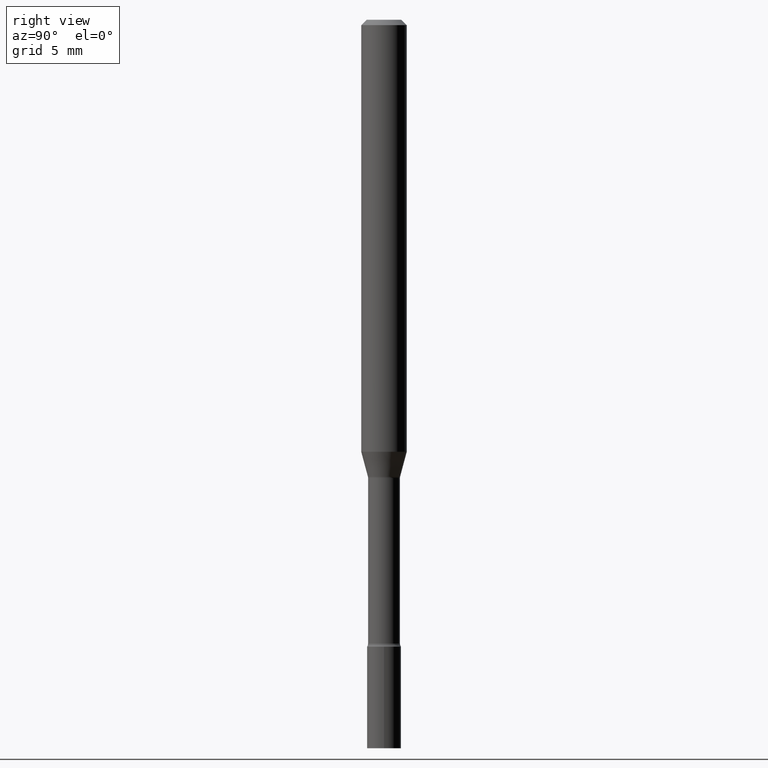
[diagram: clean part render]
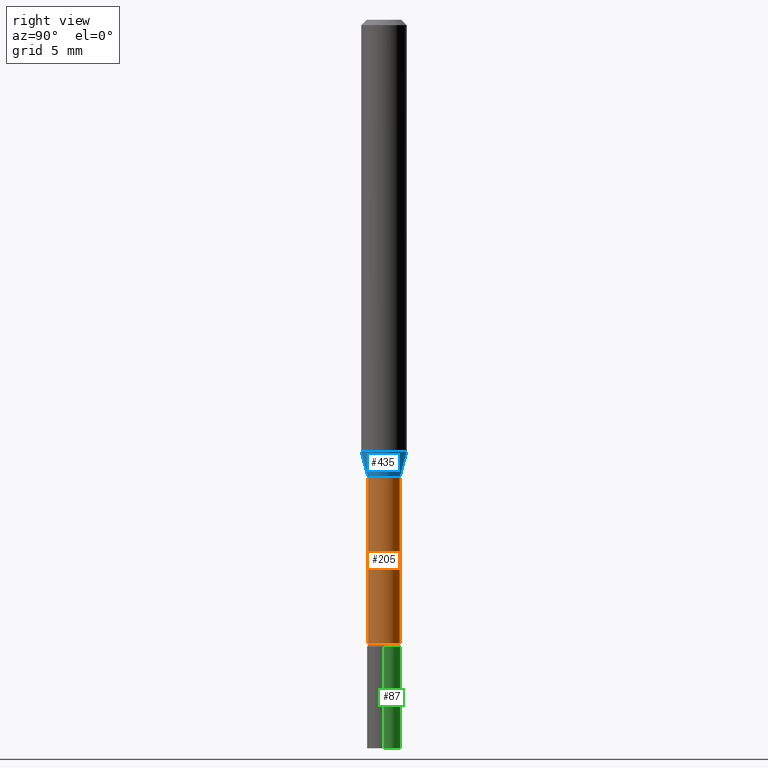
[diagram: same view with three faces highlighted in distinct colors, each labeled with its STEP entity id]
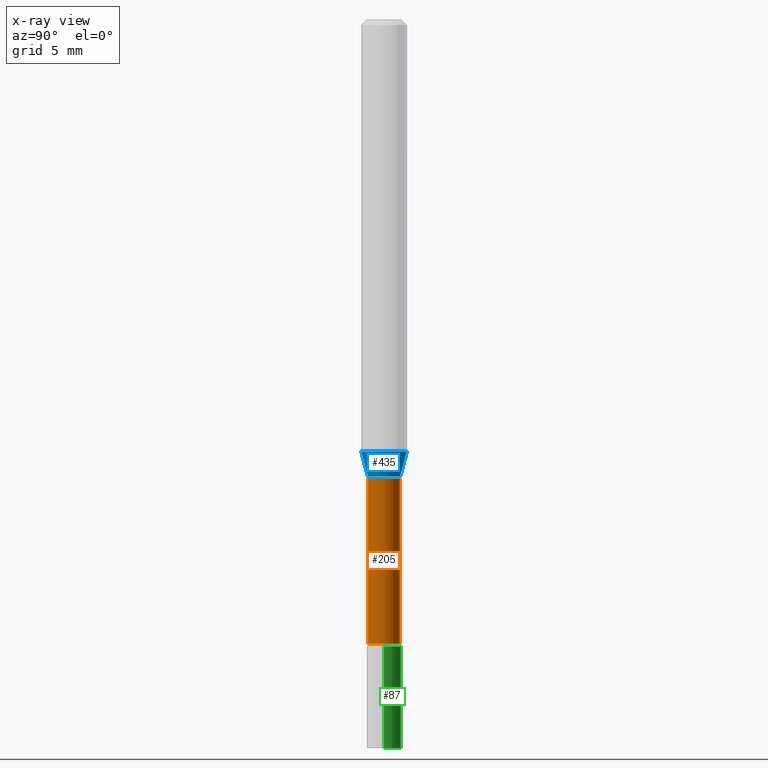
[diagram: x-ray of the same camera — body ghosted, the three highlighted faces saturated]
A machine part, right view with three faces highlighted in distinct colors.
The next image is the same camera in x-ray (body ghosted, the three faces saturated) — at least one of them is partly hidden behind the body in this view.
Their STEP definitions:

[orange] entity #205 — the highlighted cylindrical surface (edge-blend (fillet) strip) has radius 1.11 mm, axis along (-0, 0, 1).
#3 = DIRECTION ( 'NONE',  ( -6.982962677686265133E-15, -1.000000000000000000, 6.251368406554375417E-15 ) ) ;
#6 = EDGE_CURVE ( 'NONE', #343, #289, #273, .T. ) ;
#17 = EDGE_CURVE ( 'NONE', #213, #247, #86, .T. ) ;
#38 = FACE_OUTER_BOUND ( 'NONE', #390, .T. ) ;
#40 = DIRECTION ( 'NONE',  ( -6.982962677686264344E-15, -1.000000000000000000, 6.251368406554373050E-15 ) ) ;
#43 = CARTESIAN_POINT ( 'NONE',  ( 4.187330458508121019E-29, -5.978340440266618372E-15, -1.712273030308291366 ) ) ;
#58 = EDGE_CURVE ( 'NONE', #289, #247, #476, .T. ) ;
#76 = DIRECTION ( 'NONE',  ( -2.445480588895451802E-29, 3.491464465331343396E-15, 1.000000000000000000 ) ) ;
#86 = CIRCLE ( 'NONE', #494, 0.04370000000000001661 ) ;
#95 = DIRECTION ( 'NONE',  ( -2.445480588895451802E-29, 3.491464465331343396E-15, 1.000000000000000000 ) ) ;
#102 = CARTESIAN_POINT ( 'NONE',  ( -3.051554690148591516E-16, -0.04370000000000440893, -1.257974787463810751 ) ) ;
#140 = ORIENTED_EDGE ( 'NONE', *, *, #6, .T. ) ;
#158 = EDGE_CURVE ( 'NONE', #343, #213, #290, .T. ) ;
#172 = VECTOR ( 'NONE', #76, 39.37007874015748143 ) ;
#197 = CYLINDRICAL_SURFACE ( 'NONE', #399, 0.04370000000000002355 ) ;
#198 = CARTESIAN_POINT ( 'NONE',  ( 3.076352924062631068E-29, -4.392174268712645815E-15, -1.257974787463810973 ) ) ;
#205 = ADVANCED_FACE ( 'NONE', ( #38 ), #197, .T. ) ;
#213 = VERTEX_POINT ( 'NONE', #102 ) ;
#218 = CARTESIAN_POINT ( 'NONE',  ( -3.051554690148482062E-16, -0.04370000000000601181, -1.712273030308291144 ) ) ;
#238 = AXIS2_PLACEMENT_3D ( 'NONE', #43, #362, #40 ) ;
#242 = DIRECTION ( 'NONE',  ( -2.445480588895451802E-29, 3.491464465331343790E-15, 1.000000000000000000 ) ) ;
#247 = VERTEX_POINT ( 'NONE', #336 ) ;
#249 = ORIENTED_EDGE ( 'NONE', *, *, #58, .T. ) ;
#270 = ORIENTED_EDGE ( 'NONE', *, *, #158, .F. ) ;
#273 = CIRCLE ( 'NONE', #238, 0.04370000000000003743 ) ;
#289 = VERTEX_POINT ( 'NONE', #474 ) ;
#290 = LINE ( 'NONE', #460, #516 ) ;
#330 = DIRECTION ( 'NONE',  ( -6.982962677686265133E-15, -1.000000000000000000, 3.491464465331344185E-15 ) ) ;
#336 = CARTESIAN_POINT ( 'NONE',  ( 3.105071755272057582E-16, 0.04369999999999563123, -1.257974787463811195 ) ) ;
#343 = VERTEX_POINT ( 'NONE', #218 ) ;
#353 = ORIENTED_EDGE ( 'NONE', *, *, #17, .F. ) ;
#362 = DIRECTION ( 'NONE',  ( -2.445480588895451802E-29, 3.491464465331343790E-15, 1.000000000000000000 ) ) ;
#390 = EDGE_LOOP ( 'NONE', ( #140, #249, #353, #270 ) ) ;
#392 = CARTESIAN_POINT ( 'NONE',  ( 3.105071755271638992E-16, 0.04370000000000002355, -1.525769971349798148E-16 ) ) ;
#399 = AXIS2_PLACEMENT_3D ( 'NONE', #430, #242, #330 ) ;
#430 = CARTESIAN_POINT ( 'NONE',  ( 0.000000000000000000, 0.000000000000000000, 0.000000000000000000 ) ) ;
#460 = CARTESIAN_POINT ( 'NONE',  ( -3.051554690148899665E-16, -0.04370000000000002355, 1.525769971349798148E-16 ) ) ;
#474 = CARTESIAN_POINT ( 'NONE',  ( 3.204547738278472978E-16, 0.04369999999999405610, -1.712273030308291810 ) ) ;
#476 = LINE ( 'NONE', #392, #172 ) ;
#494 = AXIS2_PLACEMENT_3D ( 'NONE', #198, #520, #3 ) ;
#516 = VECTOR ( 'NONE', #95, 39.37007874015748143 ) ;
#520 = DIRECTION ( 'NONE',  ( -2.445480588895451802E-29, 3.491464465331343790E-15, 1.000000000000000000 ) ) ;

[blue] entity #435 — the highlighted conical surface has half-angle 15 deg.
#35 = AXIS2_PLACEMENT_3D ( 'NONE', #178, #296, #465 ) ;
#37 = CIRCLE ( 'NONE', #328, 0.06250000000000000000 ) ;
#65 = CARTESIAN_POINT ( 'NONE',  ( -3.087245492643057408E-16, -0.04421111260566836648, -1.254092501787272829 ) ) ;
#99 = CARTESIAN_POINT ( 'NONE',  ( 3.791140294341928442E-16, 0.04421111260565960960, -1.254092501787273273 ) ) ;
#103 = VERTEX_POINT ( 'NONE', #283 ) ;
#121 = DIRECTION ( 'NONE',  ( -2.445480588895451802E-29, 3.491464465331343790E-15, 1.000000000000000000 ) ) ;
#142 = FACE_OUTER_BOUND ( 'NONE', #406, .T. ) ;
#166 = EDGE_CURVE ( 'NONE', #377, #177, #261, .T. ) ;
#174 = ORIENTED_EDGE ( 'NONE', *, *, #188, .F. ) ;
#176 = CARTESIAN_POINT ( 'NONE',  ( -4.364351673553623829E-16, -0.06250000000000410783, -1.185837444817704922 ) ) ;
#177 = VERTEX_POINT ( 'NONE', #466 ) ;
#178 = CARTESIAN_POINT ( 'NONE',  ( 3.066858869800110826E-29, -4.378619406228748926E-15, -1.254092501787273051 ) ) ;
#187 = AXIS2_PLACEMENT_3D ( 'NONE', #350, #308, #513 ) ;
#188 = EDGE_CURVE ( 'NONE', #103, #191, #372, .T. ) ;
#191 = VERTEX_POINT ( 'NONE', #176 ) ;
#250 = CARTESIAN_POINT ( 'NONE',  ( 3.141388490182940323E-16, 0.04421111260565960960, -1.254092501787273273 ) ) ;
#251 = EDGE_CURVE ( 'NONE', #191, #177, #37, .T. ) ;
#261 = LINE ( 'NONE', #250, #282 ) ;
#263 = CONICAL_SURFACE ( 'NONE', #35, 0.04421111260566398804, 0.2617993877991500740 ) ;
#282 = VECTOR ( 'NONE', #384, 39.37007874015748854 ) ;
#283 = CARTESIAN_POINT ( 'NONE',  ( -3.087245492643057408E-16, -0.04421111260566836648, -1.254092501787272829 ) ) ;
#296 = DIRECTION ( 'NONE',  ( -2.445480588895451802E-29, 3.491464465331343790E-15, 1.000000000000000000 ) ) ;
#300 = DIRECTION ( 'NONE',  ( -6.982962677686265922E-15, -1.000000000000000000, 4.370956789862821150E-15 ) ) ;
#301 = ORIENTED_EDGE ( 'NONE', *, *, #251, .F. ) ;
#308 = DIRECTION ( 'NONE',  ( -2.445480588895451802E-29, 3.491464465331343790E-15, 1.000000000000000000 ) ) ;
#328 = AXIS2_PLACEMENT_3D ( 'NONE', #451, #121, #300 ) ;
#350 = CARTESIAN_POINT ( 'NONE',  ( 3.066858869800110826E-29, -4.378619406228748926E-15, -1.254092501787273051 ) ) ;
#372 = LINE ( 'NONE', #65, #418 ) ;
#377 = VERTEX_POINT ( 'NONE', #99 ) ;
#384 = DIRECTION ( 'NONE',  ( 1.839019923739598738E-15, 0.2588190451025247363, 0.9659258262890673130 ) ) ;
#389 = EDGE_CURVE ( 'NONE', #103, #377, #501, .T. ) ;
#406 = EDGE_LOOP ( 'NONE', ( #461, #440, #301, #174 ) ) ;
#418 = VECTOR ( 'NONE', #502, 39.37007874015748854 ) ;
#435 = ADVANCED_FACE ( 'NONE', ( #142 ), #263, .T. ) ;
#440 = ORIENTED_EDGE ( 'NONE', *, *, #166, .T. ) ;
#451 = CARTESIAN_POINT ( 'NONE',  ( 2.899942452887079793E-29, -4.140309300240336483E-15, -1.185837444817705144 ) ) ;
#461 = ORIENTED_EDGE ( 'NONE', *, *, #389, .T. ) ;
#465 = DIRECTION ( 'NONE',  ( -6.982962677686266711E-15, -1.000000000000000000, 6.179098042681422745E-15 ) ) ;
#466 = CARTESIAN_POINT ( 'NONE',  ( 4.440892098500917054E-16, 0.06249999999999589217, -1.185837444817705588 ) ) ;
#501 = CIRCLE ( 'NONE', #187, 0.04421111260566398804 ) ;
#502 = DIRECTION ( 'NONE',  ( -1.807323732225328562E-15, -0.2588190451025179639, 0.9659258262890690894 ) ) ;
#513 = DIRECTION ( 'NONE',  ( -6.982962677686266711E-15, -1.000000000000000000, 6.179098042681422745E-15 ) ) ;

[green] entity #87 — the highlighted cylindrical surface (edge-blend (fillet) strip) has radius 1.1811 mm, axis along (-0, 0, 1).
#21 = ORIENTED_EDGE ( 'NONE', *, *, #419, .F. ) ;
#22 = LINE ( 'NONE', #183, #116 ) ;
#24 = CYLINDRICAL_SURFACE ( 'NONE', #420, 0.04649999999999999967 ) ;
#67 = VERTEX_POINT ( 'NONE', #194 ) ;
#84 = ORIENTED_EDGE ( 'NONE', *, *, #369, .T. ) ;
#87 = ADVANCED_FACE ( 'NONE', ( #381 ), #24, .T. ) ;
#88 = ORIENTED_EDGE ( 'NONE', *, *, #163, .F. ) ;
#101 = DIRECTION ( 'NONE',  ( -2.445468806185136597E-29, 3.491481338843145583E-15, 1.000000000000000000 ) ) ;
#105 = DIRECTION ( 'NONE',  ( 1.000000000000000000, -6.982962677686267499E-15, 4.876176775795936353E-29 ) ) ;
#116 = VECTOR ( 'NONE', #147, 39.37007874015748143 ) ;
#139 = VECTOR ( 'NONE', #469, 39.37007874015748143 ) ;
#145 = CARTESIAN_POINT ( 'NONE',  ( -0.04649999999999999967, -6.165498658789225463E-15, -2.000000000000000000 ) ) ;
#147 = DIRECTION ( 'NONE',  ( -2.445468806185136877E-29, 3.491481338843145188E-15, 1.000000000000000000 ) ) ;
#157 = CIRCLE ( 'NONE', #346, 0.04649999999999999967 ) ;
#161 = VERTEX_POINT ( 'NONE', #145 ) ;
#163 = EDGE_CURVE ( 'NONE', #67, #506, #22, .T. ) ;
#183 = CARTESIAN_POINT ( 'NONE',  ( 0.04649999999999999967, -3.247077645124114474E-16, 2.267422200745110326E-30 ) ) ;
#194 = CARTESIAN_POINT ( 'NONE',  ( 0.04649999999999999967, -7.307670442198702662E-15, -2.000000000000000000 ) ) ;
#221 = DIRECTION ( 'NONE',  ( 1.000000000000000000, -6.982962677686260400E-15, 0.000000000000000000 ) ) ;
#246 = AXIS2_PLACEMENT_3D ( 'NONE', #305, #101, #507 ) ;
#258 = ORIENTED_EDGE ( 'NONE', *, *, #278, .T. ) ;
#266 = CARTESIAN_POINT ( 'NONE',  ( 4.208651815444620572E-29, -6.008839384149054309E-15, -1.721000000000000085 ) ) ;
#278 = EDGE_CURVE ( 'NONE', #67, #161, #340, .T. ) ;
#305 = CARTESIAN_POINT ( 'NONE',  ( 4.890937612370273194E-29, -6.982962677686291165E-15, -2.000000000000000000 ) ) ;
#340 = CIRCLE ( 'NONE', #246, 0.04649999999999999967 ) ;
#342 = DIRECTION ( 'NONE',  ( -2.445468806185136597E-29, 3.491481338843145583E-15, 1.000000000000000000 ) ) ;
#346 = AXIS2_PLACEMENT_3D ( 'NONE', #266, #426, #221 ) ;
#369 = EDGE_CURVE ( 'NONE', #161, #504, #473, .T. ) ;
#381 = FACE_OUTER_BOUND ( 'NONE', #415, .T. ) ;
#415 = EDGE_LOOP ( 'NONE', ( #258, #84, #21, #88 ) ) ;
#419 = EDGE_CURVE ( 'NONE', #506, #504, #157, .T. ) ;
#420 = AXIS2_PLACEMENT_3D ( 'NONE', #509, #342, #105 ) ;
#426 = DIRECTION ( 'NONE',  ( -2.445468806185136597E-29, 3.491481338843145583E-15, 1.000000000000000000 ) ) ;
#433 = CARTESIAN_POINT ( 'NONE',  ( -0.04649999999999999967, 3.304023721284465841E-16, -2.287304816968531530E-30 ) ) ;
#439 = CARTESIAN_POINT ( 'NONE',  ( -0.04649999999999999967, -6.165498658789225463E-15, -1.721000000000000085 ) ) ;
#441 = CARTESIAN_POINT ( 'NONE',  ( 0.04649999999999999967, -6.333547148661465016E-15, -1.721000000000000085 ) ) ;
#469 = DIRECTION ( 'NONE',  ( -2.445468806185136877E-29, 3.491481338843145188E-15, 1.000000000000000000 ) ) ;
#473 = LINE ( 'NONE', #433, #139 ) ;
#504 = VERTEX_POINT ( 'NONE', #439 ) ;
#506 = VERTEX_POINT ( 'NONE', #441 ) ;
#507 = DIRECTION ( 'NONE',  ( 1.000000000000000000, -6.982962677686260400E-15, 0.000000000000000000 ) ) ;
#509 = CARTESIAN_POINT ( 'NONE',  ( 0.000000000000000000, 0.000000000000000000, 0.000000000000000000 ) ) ;